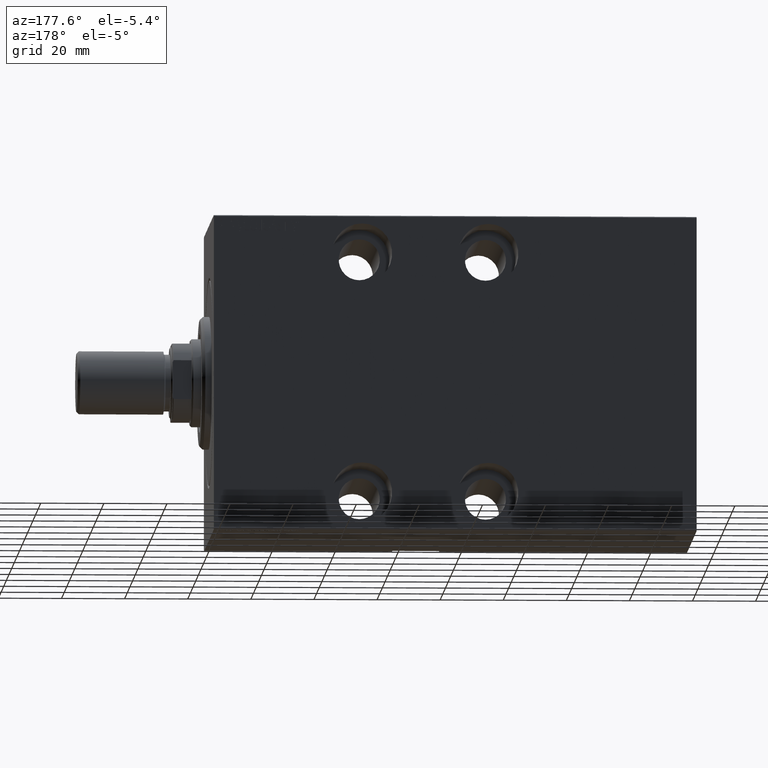
[diagram: clean part render]
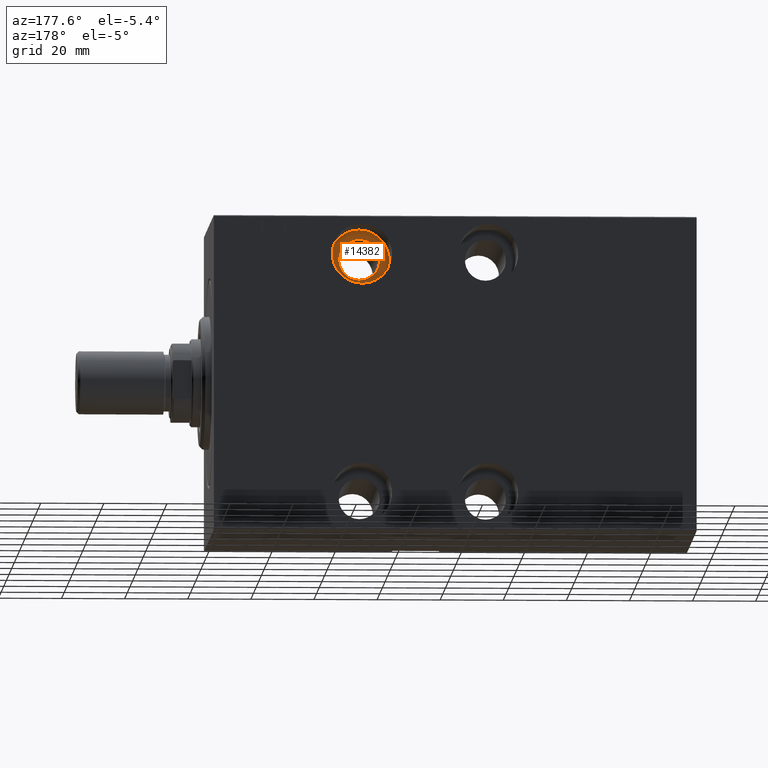
[diagram: same view with one face highlighted and labeled with its STEP entity id]
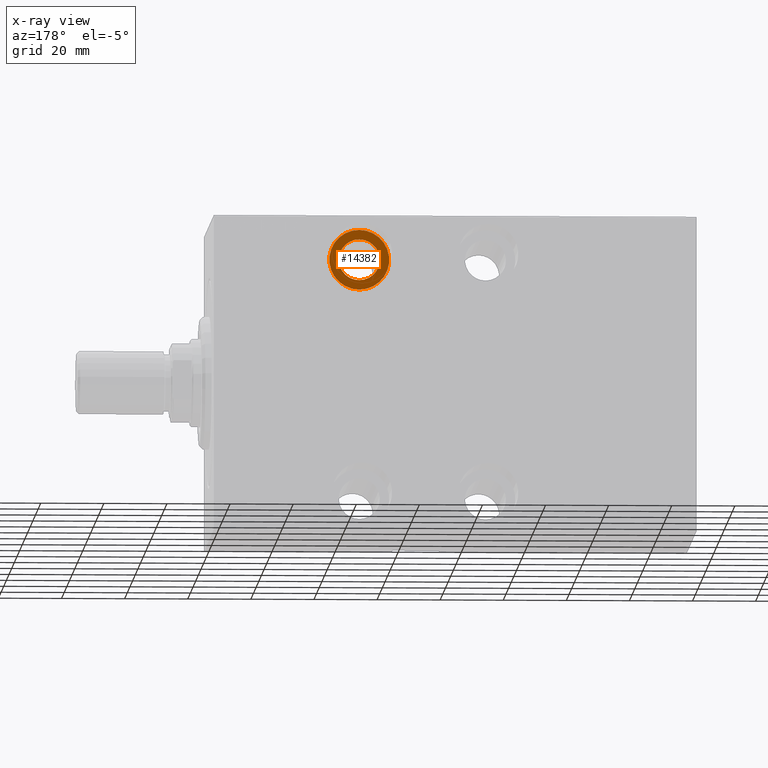
[diagram: x-ray of the same camera — body ghosted, the highlighted face saturated]
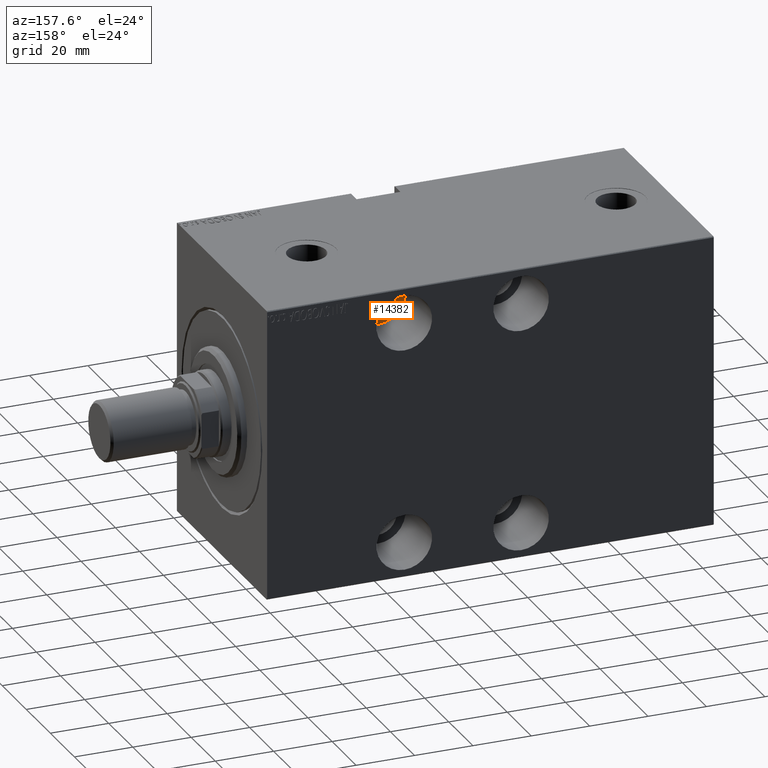
[diagram: same view with one face highlighted and labeled with its STEP entity id]
A machine part, auxiliary view. The second image highlights one B-rep face of the part: STEP entity #14382.
The next image is the same camera in x-ray: the body ghosted, the highlighted face saturated — about 0% of this face is hidden behind the body in this view.
A second angle (auxiliary view) of the same face is appended — the face is thin or edge-on in the first view.
In plain terms, the highlighted planar face has unit normal (-0, 1, 0).
Its self-contained STEP definition (entity closure, byte-faithful):
#930 = EDGE_CURVE ( 'NONE', #9168, #33116, #15935, .T. ) ;
#4431 = AXIS2_PLACEMENT_3D ( 'NONE', #34886, #35535, #10888 ) ;
#6306 = EDGE_CURVE ( 'NONE', #25549, #15109, #21047, .T. ) ;
#6753 = CARTESIAN_POINT ( 'NONE',  ( 47.00000000000000711, -15.49999999999999289, 38.00000000000001421 ) ) ;
#7530 = PLANE ( 'NONE',  #4431 ) ;
#8179 = FACE_OUTER_BOUND ( 'NONE', #28451, .T. ) ;
#8407 = DIRECTION ( 'NONE',  ( 0.000000000000000000, -1.000000000000000000, 0.000000000000000000 ) ) ;
#9168 = VERTEX_POINT ( 'NONE', #22648 ) ;
#10888 = DIRECTION ( 'NONE',  ( 0.000000000000000000, -0.000000000000000000, -1.000000000000000000 ) ) ;
#12807 = ORIENTED_EDGE ( 'NONE', *, *, #930, .T. ) ;
#14382 = ADVANCED_FACE ( 'NONE', ( #8179, #24577 ), #7530, .T. ) ;
#15109 = VERTEX_POINT ( 'NONE', #23924 ) ;
#15366 = CIRCLE ( 'NONE', #30422, 9.500000000000001776 ) ;
#15935 = CIRCLE ( 'NONE', #23863, 6.499999999999999112 ) ;
#16033 = CARTESIAN_POINT ( 'NONE',  ( 47.00000000000000711, -15.49999999999999289, 47.50000000000001421 ) ) ;
#21047 = CIRCLE ( 'NONE', #38231, 9.500000000000001776 ) ;
#21833 = EDGE_CURVE ( 'NONE', #15109, #25549, #15366, .T. ) ;
#22648 = CARTESIAN_POINT ( 'NONE',  ( 47.00000000000000711, -15.49999999999999289, 31.50000000000001421 ) ) ;
#22999 = CARTESIAN_POINT ( 'NONE',  ( 47.00000000000000711, -15.49999999999999289, 38.00000000000001421 ) ) ;
#23863 = AXIS2_PLACEMENT_3D ( 'NONE', #6753, #33435, #40843 ) ;
#23924 = CARTESIAN_POINT ( 'NONE',  ( 47.00000000000000711, -15.49999999999999289, 28.50000000000001066 ) ) ;
#24577 = FACE_BOUND ( 'NONE', #26238, .T. ) ;
#24808 = ORIENTED_EDGE ( 'NONE', *, *, #38346, .T. ) ;
#25482 = ORIENTED_EDGE ( 'NONE', *, *, #6306, .T. ) ;
#25549 = VERTEX_POINT ( 'NONE', #16033 ) ;
#25715 = CARTESIAN_POINT ( 'NONE',  ( 47.00000000000000711, -15.49999999999999289, 44.50000000000001421 ) ) ;
#26238 = EDGE_LOOP ( 'NONE', ( #24808, #12807 ) ) ;
#28152 = CARTESIAN_POINT ( 'NONE',  ( 47.00000000000000711, -15.49999999999999289, 38.00000000000001421 ) ) ;
#28451 = EDGE_LOOP ( 'NONE', ( #35565, #25482 ) ) ;
#30422 = AXIS2_PLACEMENT_3D ( 'NONE', #28152, #34444, #38457 ) ;
#32166 = AXIS2_PLACEMENT_3D ( 'NONE', #22999, #33302, #36006 ) ;
#33116 = VERTEX_POINT ( 'NONE', #25715 ) ;
#33302 = DIRECTION ( 'NONE',  ( -0.000000000000000000, 1.000000000000000000, -0.000000000000000000 ) ) ;
#33435 = DIRECTION ( 'NONE',  ( -0.000000000000000000, 1.000000000000000000, -0.000000000000000000 ) ) ;
#34444 = DIRECTION ( 'NONE',  ( 0.000000000000000000, -1.000000000000000000, 0.000000000000000000 ) ) ;
#34886 = CARTESIAN_POINT ( 'NONE',  ( 0.000000000000000000, -15.49999999999999289, 0.000000000000000000 ) ) ;
#35318 = DIRECTION ( 'NONE',  ( 0.000000000000000000, 0.000000000000000000, -1.000000000000000000 ) ) ;
#35535 = DIRECTION ( 'NONE',  ( 0.000000000000000000, -1.000000000000000000, 0.000000000000000000 ) ) ;
#35565 = ORIENTED_EDGE ( 'NONE', *, *, #21833, .T. ) ;
#36006 = DIRECTION ( 'NONE',  ( 0.000000000000000000, 0.000000000000000000, -1.000000000000000000 ) ) ;
#38231 = AXIS2_PLACEMENT_3D ( 'NONE', #43538, #8407, #35318 ) ;
#38346 = EDGE_CURVE ( 'NONE', #33116, #9168, #40759, .T. ) ;
#38457 = DIRECTION ( 'NONE',  ( 0.000000000000000000, 0.000000000000000000, -1.000000000000000000 ) ) ;
#40759 = CIRCLE ( 'NONE', #32166, 6.499999999999999112 ) ;
#40843 = DIRECTION ( 'NONE',  ( 0.000000000000000000, 0.000000000000000000, -1.000000000000000000 ) ) ;
#43538 = CARTESIAN_POINT ( 'NONE',  ( 47.00000000000000711, -15.49999999999999289, 38.00000000000001421 ) ) ;